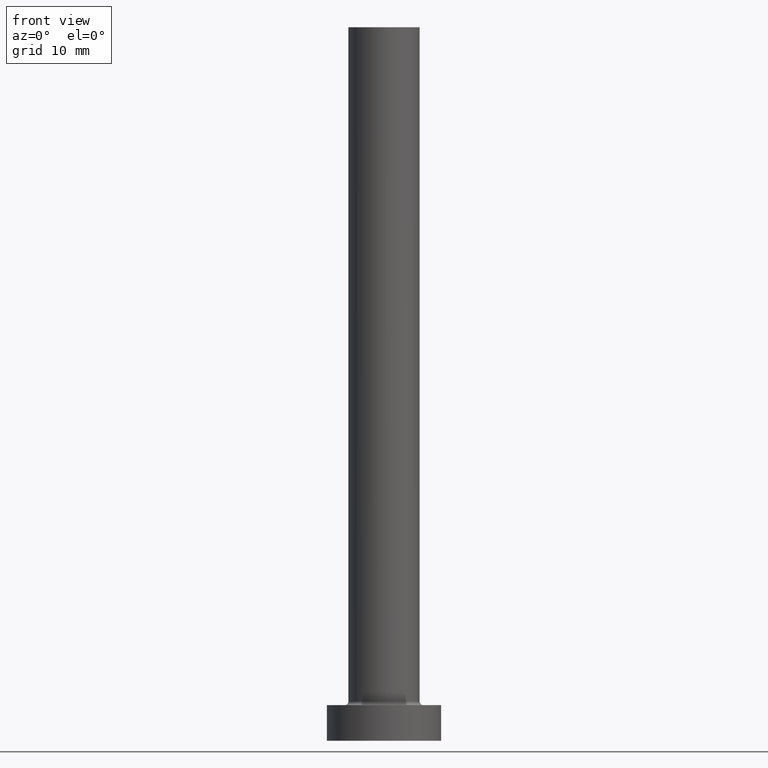
[diagram: clean part render]
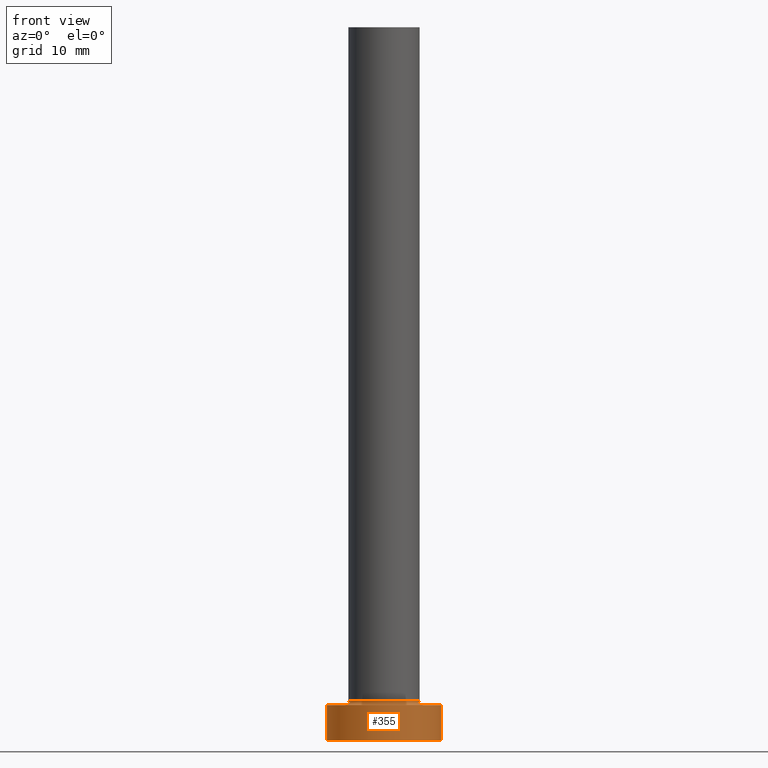
[diagram: same view with one face highlighted and labeled with its STEP entity id]
A machine part, front view. The second image highlights one B-rep face of the part: STEP entity #355.
In plain terms, the highlighted cylindrical surface (partial cylindrical patch) has radius 8 mm, axis along (-0, -0, -1).
Its self-contained STEP definition (entity closure, byte-faithful):
#30 = ORIENTED_EDGE ( 'NONE', *, *, #244, .F. ) ;
#85 = ORIENTED_EDGE ( 'NONE', *, *, #291, .F. ) ;
#92 = VERTEX_POINT ( 'NONE', #308 ) ;
#95 = CIRCLE ( 'NONE', #162, 8.000000000000000000 ) ;
#104 = CARTESIAN_POINT ( 'NONE',  ( 0.000000000000000000, 0.000000000000000000, 5.000000000000000000 ) ) ;
#108 = EDGE_CURVE ( 'NONE', #140, #92, #387, .T. ) ;
#113 = EDGE_CURVE ( 'NONE', #405, #140, #301, .T. ) ;
#118 = CYLINDRICAL_SURFACE ( 'NONE', #334, 8.000000000000000000 ) ;
#135 = ORIENTED_EDGE ( 'NONE', *, *, #113, .T. ) ;
#138 = VECTOR ( 'NONE', #144, 1000.000000000000000 ) ;
#140 = VERTEX_POINT ( 'NONE', #141 ) ;
#141 = CARTESIAN_POINT ( 'NONE',  ( -8.000000000000000000, 0.000000000000000000, 0.000000000000000000 ) ) ;
#144 = DIRECTION ( 'NONE',  ( -0.000000000000000000, -0.000000000000000000, -1.000000000000000000 ) ) ;
#147 = CARTESIAN_POINT ( 'NONE',  ( -8.000000000000000000, 0.000000000000000000, 5.000000000000000000 ) ) ;
#162 = AXIS2_PLACEMENT_3D ( 'NONE', #104, #211, #440 ) ;
#178 = FACE_OUTER_BOUND ( 'NONE', #218, .T. ) ;
#188 = DIRECTION ( 'NONE',  ( 1.000000000000000000, 0.000000000000000000, 0.000000000000000000 ) ) ;
#211 = DIRECTION ( 'NONE',  ( 0.000000000000000000, 0.000000000000000000, 1.000000000000000000 ) ) ;
#218 = EDGE_LOOP ( 'NONE', ( #85, #30, #135, #321 ) ) ;
#244 = EDGE_CURVE ( 'NONE', #405, #245, #95, .T. ) ;
#245 = VERTEX_POINT ( 'NONE', #252 ) ;
#252 = CARTESIAN_POINT ( 'NONE',  ( 8.000000000000000000, 9.797174393178825657E-16, 5.000000000000000000 ) ) ;
#267 = DIRECTION ( 'NONE',  ( -0.000000000000000000, -0.000000000000000000, -1.000000000000000000 ) ) ;
#272 = CARTESIAN_POINT ( 'NONE',  ( 0.000000000000000000, 0.000000000000000000, 0.000000000000000000 ) ) ;
#291 = EDGE_CURVE ( 'NONE', #245, #92, #382, .T. ) ;
#292 = VECTOR ( 'NONE', #455, 1000.000000000000000 ) ;
#301 = LINE ( 'NONE', #147, #138 ) ;
#308 = CARTESIAN_POINT ( 'NONE',  ( 8.000000000000000000, 9.797174393178825657E-16, 0.000000000000000000 ) ) ;
#309 = CARTESIAN_POINT ( 'NONE',  ( 8.000000000000000000, 9.797174393178825657E-16, 5.000000000000000000 ) ) ;
#321 = ORIENTED_EDGE ( 'NONE', *, *, #108, .T. ) ;
#334 = AXIS2_PLACEMENT_3D ( 'NONE', #408, #267, #365 ) ;
#355 = ADVANCED_FACE ( 'NONE', ( #178 ), #118, .T. ) ;
#365 = DIRECTION ( 'NONE',  ( -1.000000000000000000, 0.000000000000000000, 0.000000000000000000 ) ) ;
#382 = LINE ( 'NONE', #309, #292 ) ;
#387 = CIRCLE ( 'NONE', #419, 8.000000000000000000 ) ;
#398 = CARTESIAN_POINT ( 'NONE',  ( -8.000000000000000000, 0.000000000000000000, 5.000000000000000000 ) ) ;
#405 = VERTEX_POINT ( 'NONE', #398 ) ;
#408 = CARTESIAN_POINT ( 'NONE',  ( 0.000000000000000000, 0.000000000000000000, 5.000000000000000000 ) ) ;
#417 = DIRECTION ( 'NONE',  ( 0.000000000000000000, 0.000000000000000000, 1.000000000000000000 ) ) ;
#419 = AXIS2_PLACEMENT_3D ( 'NONE', #272, #417, #188 ) ;
#440 = DIRECTION ( 'NONE',  ( 1.000000000000000000, 0.000000000000000000, 0.000000000000000000 ) ) ;
#455 = DIRECTION ( 'NONE',  ( -0.000000000000000000, -0.000000000000000000, -1.000000000000000000 ) ) ;